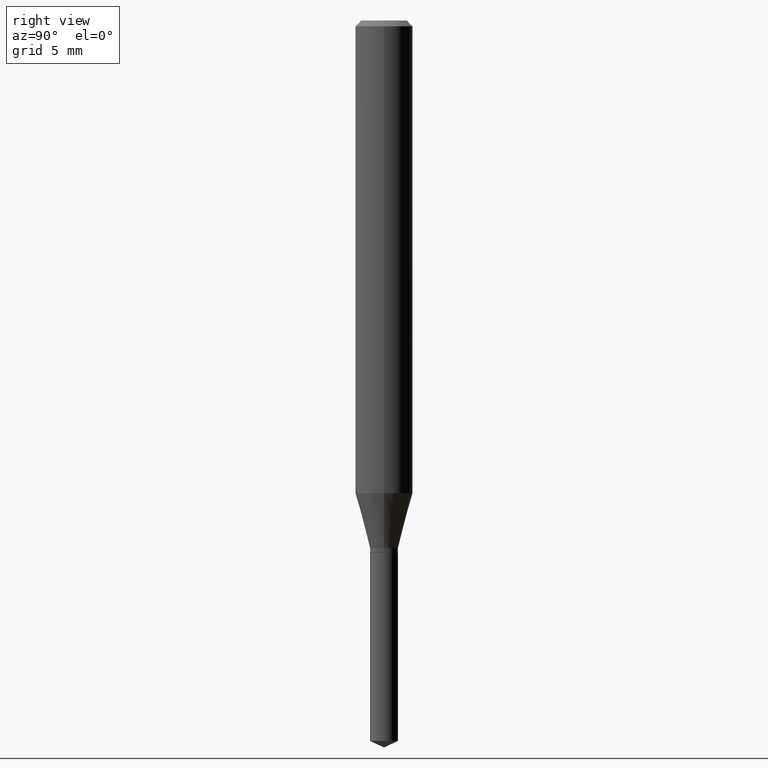
[diagram: clean part render]
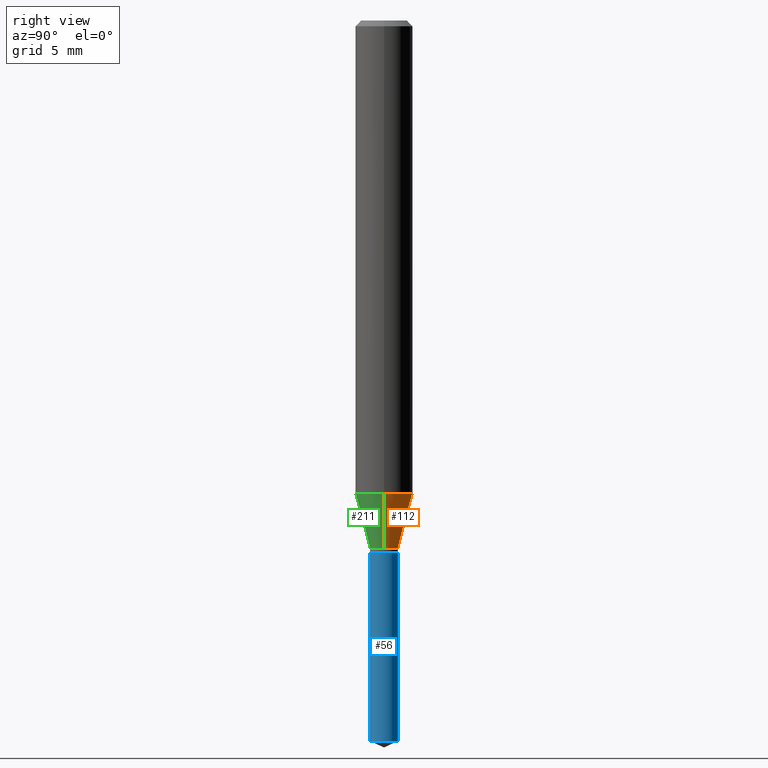
[diagram: same view with three faces highlighted in distinct colors, each labeled with its STEP entity id]
A machine part, right view with three faces highlighted in distinct colors.
Their STEP definitions:

[orange] entity #112 — the highlighted conical surface has half-angle 15 deg.
#8 = ORIENTED_EDGE ( 'NONE', *, *, #484, .F. ) ;
#11 = CONICAL_SURFACE ( 'NONE', #188, 0.02874999999999998737, 0.2617993877991498519 ) ;
#24 = DIRECTION ( 'NONE',  ( -0.2588190451025211281, 5.211531920934547886E-15, 0.9659258262890679791 ) ) ;
#48 = VERTEX_POINT ( 'NONE', #394 ) ;
#50 = CARTESIAN_POINT ( 'NONE',  ( 2.655534576636439869E-29, -3.791399585849771334E-15, -1.085899999999999865 ) ) ;
#54 = CARTESIAN_POINT ( 'NONE',  ( 0.02874999999999998737, -3.992159762833251344E-15, -1.085899999999999865 ) ) ;
#74 = CARTESIAN_POINT ( 'NONE',  ( 2.655534576636439869E-29, -3.791399585849771334E-15, -1.085899999999999865 ) ) ;
#88 = VERTEX_POINT ( 'NONE', #90 ) ;
#90 = CARTESIAN_POINT ( 'NONE',  ( -0.05905000000000011628, -2.977003412151120974E-15, -0.9728188605306625769 ) ) ;
#100 = CARTESIAN_POINT ( 'NONE',  ( -0.02874999999999998737, -3.587118549318742152E-15, -1.085899999999999865 ) ) ;
#108 = VERTEX_POINT ( 'NONE', #125 ) ;
#109 = DIRECTION ( 'NONE',  ( 1.000000000000000000, -6.982962677686259611E-15, 0.000000000000000000 ) ) ;
#112 = ADVANCED_FACE ( 'NONE', ( #384 ), #11, .T. ) ;
#125 = CARTESIAN_POINT ( 'NONE',  ( 0.02874999999999998737, -3.992159762833251344E-15, -1.085899999999999865 ) ) ;
#150 = DIRECTION ( 'NONE',  ( 0.2588190451025211281, 1.565188264969622954E-15, 0.9659258262890679791 ) ) ;
#174 = LINE ( 'NONE', #100, #378 ) ;
#175 = EDGE_CURVE ( 'NONE', #48, #88, #174, .T. ) ;
#177 = VERTEX_POINT ( 'NONE', #355 ) ;
#179 = CIRCLE ( 'NONE', #315, 0.02874999999999998737 ) ;
#188 = AXIS2_PLACEMENT_3D ( 'NONE', #50, #191, #342 ) ;
#191 = DIRECTION ( 'NONE',  ( -2.445468806185136597E-29, 3.491481338843145583E-15, 1.000000000000000000 ) ) ;
#263 = ORIENTED_EDGE ( 'NONE', *, *, #352, .F. ) ;
#279 = ORIENTED_EDGE ( 'NONE', *, *, #312, .T. ) ;
#297 = CARTESIAN_POINT ( 'NONE',  ( 2.378998177496304355E-29, -3.396578897617461256E-15, -0.9728188605306625769 ) ) ;
#312 = EDGE_CURVE ( 'NONE', #108, #48, #179, .T. ) ;
#315 = AXIS2_PLACEMENT_3D ( 'NONE', #74, #412, #109 ) ;
#335 = EDGE_LOOP ( 'NONE', ( #279, #413, #263, #8 ) ) ;
#339 = CIRCLE ( 'NONE', #390, 0.05905000000000011628 ) ;
#342 = DIRECTION ( 'NONE',  ( 1.000000000000000000, -6.982962677686259611E-15, 0.000000000000000000 ) ) ;
#352 = EDGE_CURVE ( 'NONE', #177, #88, #339, .T. ) ;
#355 = CARTESIAN_POINT ( 'NONE',  ( 0.05905000000000011628, -3.808922843734835781E-15, -0.9728188605306625769 ) ) ;
#378 = VECTOR ( 'NONE', #24, 39.37007874015748854 ) ;
#384 = FACE_OUTER_BOUND ( 'NONE', #335, .T. ) ;
#387 = LINE ( 'NONE', #54, #488 ) ;
#390 = AXIS2_PLACEMENT_3D ( 'NONE', #297, #406, #408 ) ;
#394 = CARTESIAN_POINT ( 'NONE',  ( -0.02874999999999998737, -3.601259048741056725E-15, -1.085899999999999865 ) ) ;
#406 = DIRECTION ( 'NONE',  ( -2.445468806185136597E-29, 3.491481338843145583E-15, 1.000000000000000000 ) ) ;
#408 = DIRECTION ( 'NONE',  ( 1.000000000000000000, -6.982962677686266711E-15, 0.000000000000000000 ) ) ;
#412 = DIRECTION ( 'NONE',  ( -2.445468806185136597E-29, 3.491481338843145583E-15, 1.000000000000000000 ) ) ;
#413 = ORIENTED_EDGE ( 'NONE', *, *, #175, .T. ) ;
#484 = EDGE_CURVE ( 'NONE', #108, #177, #387, .T. ) ;
#488 = VECTOR ( 'NONE', #150, 39.37007874015748854 ) ;

[blue] entity #56 — the highlighted cylindrical surface (edge-blend (fillet) strip) has radius 0.7302 mm, axis along (-0, 0, 1).
#5 = ORIENTED_EDGE ( 'NONE', *, *, #457, .F. ) ;
#31 = DIRECTION ( 'NONE',  ( -2.445470214571802396E-29, 3.491479321953280158E-15, 1.000000000000000000 ) ) ;
#47 = CARTESIAN_POINT ( 'NONE',  ( 2.042810365310650506E-16, 0.02874999999999482136, -1.482693654828043606 ) ) ;
#56 = ADVANCED_FACE ( 'NONE', ( #314 ), #231, .T. ) ;
#69 = LINE ( 'NONE', #132, #222 ) ;
#80 = VERTEX_POINT ( 'NONE', #85 ) ;
#85 = CARTESIAN_POINT ( 'NONE',  ( -2.007601769834534108E-16, -0.02875000000000382111, -1.094499999999999806 ) ) ;
#91 = DIRECTION ( 'NONE',  ( -6.982962677686265922E-15, -1.000000000000000000, 4.751039988981327336E-15 ) ) ;
#111 = VERTEX_POINT ( 'NONE', #47 ) ;
#120 = CARTESIAN_POINT ( 'NONE',  ( 2.676565608369631794E-29, -3.821426325363822773E-15, -1.094499999999999806 ) ) ;
#132 = CARTESIAN_POINT ( 'NONE',  ( 2.042810365310555350E-16, 0.02874999999999618139, -1.094500000000000028 ) ) ;
#161 = CIRCLE ( 'NONE', #262, 0.02875000000000000125 ) ;
#176 = DIRECTION ( 'NONE',  ( -2.445470214571802116E-29, 3.491479321953280158E-15, 1.000000000000000000 ) ) ;
#183 = DIRECTION ( 'NONE',  ( -6.982962677686265922E-15, -1.000000000000000000, 4.751039988981327336E-15 ) ) ;
#212 = CIRCLE ( 'NONE', #472, 0.02875000000000000125 ) ;
#214 = DIRECTION ( 'NONE',  ( -2.445470214571802116E-29, 3.491479321953280158E-15, 1.000000000000000000 ) ) ;
#216 = DIRECTION ( 'NONE',  ( -6.982962677686265922E-15, -1.000000000000000000, 0.000000000000000000 ) ) ;
#222 = VECTOR ( 'NONE', #31, 39.37007874015748143 ) ;
#231 = CYLINDRICAL_SURFACE ( 'NONE', #313, 0.02875000000000000125 ) ;
#234 = VERTEX_POINT ( 'NONE', #251 ) ;
#236 = EDGE_CURVE ( 'NONE', #111, #234, #69, .T. ) ;
#251 = CARTESIAN_POINT ( 'NONE',  ( 2.042810365310651246E-16, 0.02874999999999618139, -1.094500000000000028 ) ) ;
#258 = CARTESIAN_POINT ( 'NONE',  ( 2.676565608369631794E-29, -3.821426325363822773E-15, -1.094499999999999806 ) ) ;
#262 = AXIS2_PLACEMENT_3D ( 'NONE', #258, #214, #183 ) ;
#283 = VECTOR ( 'NONE', #383, 39.37007874015748143 ) ;
#307 = VERTEX_POINT ( 'NONE', #446 ) ;
#313 = AXIS2_PLACEMENT_3D ( 'NONE', #120, #423, #91 ) ;
#314 = FACE_OUTER_BOUND ( 'NONE', #417, .T. ) ;
#317 = CARTESIAN_POINT ( 'NONE',  ( -2.007601769834534108E-16, -0.02875000000000382111, -1.094499999999999806 ) ) ;
#354 = LINE ( 'NONE', #317, #283 ) ;
#366 = EDGE_CURVE ( 'NONE', #307, #111, #212, .T. ) ;
#370 = ORIENTED_EDGE ( 'NONE', *, *, #381, .F. ) ;
#381 = EDGE_CURVE ( 'NONE', #80, #234, #161, .T. ) ;
#383 = DIRECTION ( 'NONE',  ( -2.445470214571802396E-29, 3.491479321953280158E-15, 1.000000000000000000 ) ) ;
#417 = EDGE_LOOP ( 'NONE', ( #470, #459, #370, #5 ) ) ;
#423 = DIRECTION ( 'NONE',  ( -2.445470214571802116E-29, 3.491479321953280158E-15, 1.000000000000000000 ) ) ;
#444 = CARTESIAN_POINT ( 'NONE',  ( 3.625881628737379550E-29, -5.176796444109405893E-15, -1.482693654828043606 ) ) ;
#446 = CARTESIAN_POINT ( 'NONE',  ( -2.007601769834439198E-16, -0.02875000000000518113, -1.482693654828043606 ) ) ;
#457 = EDGE_CURVE ( 'NONE', #307, #80, #354, .T. ) ;
#459 = ORIENTED_EDGE ( 'NONE', *, *, #236, .T. ) ;
#470 = ORIENTED_EDGE ( 'NONE', *, *, #366, .T. ) ;
#472 = AXIS2_PLACEMENT_3D ( 'NONE', #444, #176, #216 ) ;

[green] entity #211 — the highlighted conical surface has half-angle 15 deg.
#7 = ORIENTED_EDGE ( 'NONE', *, *, #175, .F. ) ;
#13 = EDGE_LOOP ( 'NONE', ( #7, #144, #410, #309 ) ) ;
#24 = DIRECTION ( 'NONE',  ( -0.2588190451025211281, 5.211531920934547886E-15, 0.9659258262890679791 ) ) ;
#27 = DIRECTION ( 'NONE',  ( -2.445468806185136597E-29, 3.491481338843145583E-15, 1.000000000000000000 ) ) ;
#29 = CONICAL_SURFACE ( 'NONE', #79, 0.02874999999999998737, 0.2617993877991498519 ) ;
#48 = VERTEX_POINT ( 'NONE', #394 ) ;
#54 = CARTESIAN_POINT ( 'NONE',  ( 0.02874999999999998737, -3.992159762833251344E-15, -1.085899999999999865 ) ) ;
#64 = CARTESIAN_POINT ( 'NONE',  ( 2.378998177496304355E-29, -3.396578897617461256E-15, -0.9728188605306625769 ) ) ;
#68 = DIRECTION ( 'NONE',  ( 1.000000000000000000, -6.982962677686259611E-15, 0.000000000000000000 ) ) ;
#79 = AXIS2_PLACEMENT_3D ( 'NONE', #207, #133, #68 ) ;
#88 = VERTEX_POINT ( 'NONE', #90 ) ;
#90 = CARTESIAN_POINT ( 'NONE',  ( -0.05905000000000011628, -2.977003412151120974E-15, -0.9728188605306625769 ) ) ;
#100 = CARTESIAN_POINT ( 'NONE',  ( -0.02874999999999998737, -3.587118549318742152E-15, -1.085899999999999865 ) ) ;
#108 = VERTEX_POINT ( 'NONE', #125 ) ;
#125 = CARTESIAN_POINT ( 'NONE',  ( 0.02874999999999998737, -3.992159762833251344E-15, -1.085899999999999865 ) ) ;
#133 = DIRECTION ( 'NONE',  ( -2.445468806185136597E-29, 3.491481338843145583E-15, 1.000000000000000000 ) ) ;
#134 = EDGE_CURVE ( 'NONE', #88, #177, #291, .T. ) ;
#144 = ORIENTED_EDGE ( 'NONE', *, *, #219, .T. ) ;
#150 = DIRECTION ( 'NONE',  ( 0.2588190451025211281, 1.565188264969622954E-15, 0.9659258262890679791 ) ) ;
#174 = LINE ( 'NONE', #100, #378 ) ;
#175 = EDGE_CURVE ( 'NONE', #48, #88, #174, .T. ) ;
#177 = VERTEX_POINT ( 'NONE', #355 ) ;
#207 = CARTESIAN_POINT ( 'NONE',  ( 2.655534576636439869E-29, -3.791399585849771334E-15, -1.085899999999999865 ) ) ;
#210 = DIRECTION ( 'NONE',  ( 1.000000000000000000, -6.982962677686259611E-15, 0.000000000000000000 ) ) ;
#211 = ADVANCED_FACE ( 'NONE', ( #435 ), #29, .T. ) ;
#219 = EDGE_CURVE ( 'NONE', #48, #108, #270, .T. ) ;
#268 = AXIS2_PLACEMENT_3D ( 'NONE', #64, #439, #324 ) ;
#270 = CIRCLE ( 'NONE', #415, 0.02874999999999998737 ) ;
#291 = CIRCLE ( 'NONE', #268, 0.05905000000000011628 ) ;
#309 = ORIENTED_EDGE ( 'NONE', *, *, #134, .F. ) ;
#324 = DIRECTION ( 'NONE',  ( 1.000000000000000000, -6.982962677686266711E-15, 0.000000000000000000 ) ) ;
#355 = CARTESIAN_POINT ( 'NONE',  ( 0.05905000000000011628, -3.808922843734835781E-15, -0.9728188605306625769 ) ) ;
#378 = VECTOR ( 'NONE', #24, 39.37007874015748854 ) ;
#387 = LINE ( 'NONE', #54, #488 ) ;
#394 = CARTESIAN_POINT ( 'NONE',  ( -0.02874999999999998737, -3.601259048741056725E-15, -1.085899999999999865 ) ) ;
#396 = CARTESIAN_POINT ( 'NONE',  ( 2.655534576636439869E-29, -3.791399585849771334E-15, -1.085899999999999865 ) ) ;
#410 = ORIENTED_EDGE ( 'NONE', *, *, #484, .T. ) ;
#415 = AXIS2_PLACEMENT_3D ( 'NONE', #396, #27, #210 ) ;
#435 = FACE_OUTER_BOUND ( 'NONE', #13, .T. ) ;
#439 = DIRECTION ( 'NONE',  ( -2.445468806185136597E-29, 3.491481338843145583E-15, 1.000000000000000000 ) ) ;
#484 = EDGE_CURVE ( 'NONE', #108, #177, #387, .T. ) ;
#488 = VECTOR ( 'NONE', #150, 39.37007874015748854 ) ;